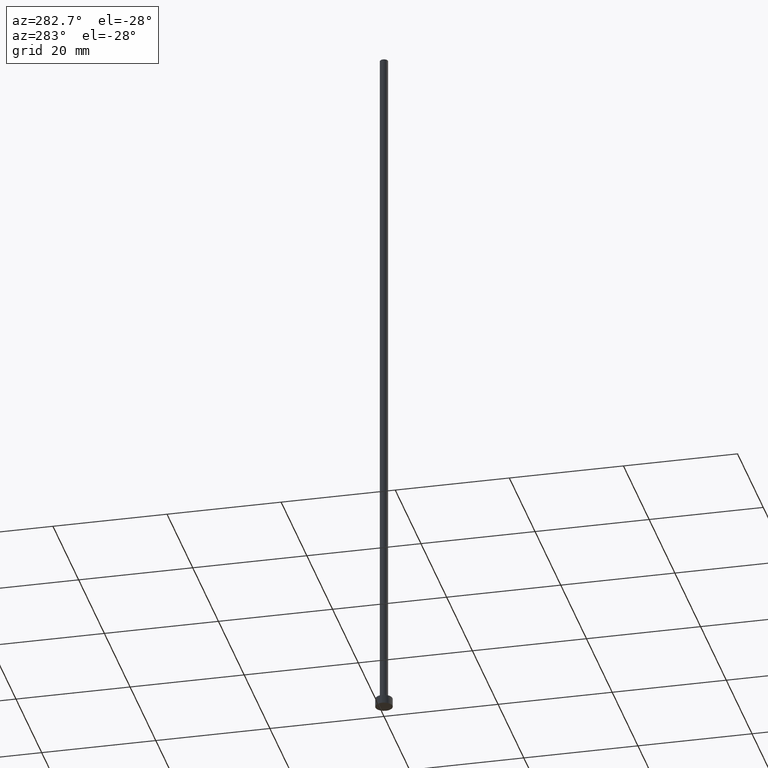
[diagram: clean part render]
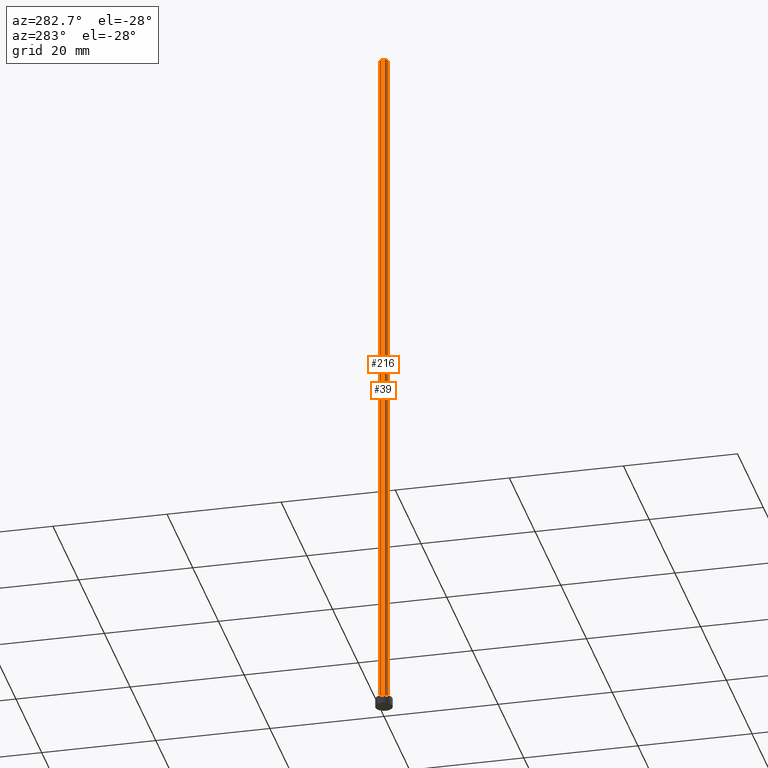
[diagram: same view with one multi-face feature highlighted, each face labeled with its STEP entity id]
A machine part, auxiliary view. The highlighted faces form ONE feature: a constant-radius fillet chain: 2 tangent blend faces with common blend radius 0.7 mm. The faces share edges in the B-rep.
Their STEP definitions:
[1] entity #39 (Cylinder):
#5 = EDGE_CURVE ( 'NONE', #131, #18, #194, .T. ) ;
#13 = DIRECTION ( 'NONE',  ( 0.000000000000000000, 0.000000000000000000, 1.000000000000000000 ) ) ;
#17 = CIRCLE ( 'NONE', #61, 0.6999999999999999556 ) ;
#18 = VERTEX_POINT ( 'NONE', #136 ) ;
#30 = DIRECTION ( 'NONE',  ( -1.000000000000000000, 0.000000000000000000, 0.000000000000000000 ) ) ;
#31 = DIRECTION ( 'NONE',  ( 1.000000000000000000, 0.000000000000000000, 0.000000000000000000 ) ) ;
#34 = CARTESIAN_POINT ( 'NONE',  ( 0.000000000000000000, 0.000000000000000000, 1.500000000000000000 ) ) ;
#35 = CIRCLE ( 'NONE', #237, 0.6999999999999999556 ) ;
#39 = ADVANCED_FACE ( 'NONE', ( #145 ), #157, .T. ) ;
#40 = ORIENTED_EDGE ( 'NONE', *, *, #5, .F. ) ;
#41 = AXIS2_PLACEMENT_3D ( 'NONE', #139, #210, #30 ) ;
#47 = EDGE_CURVE ( 'NONE', #86, #217, #172, .T. ) ;
#61 = AXIS2_PLACEMENT_3D ( 'NONE', #34, #13, #31 ) ;
#78 = CARTESIAN_POINT ( 'NONE',  ( -0.6999999999999999556, 0.000000000000000000, 125.0000000000000000 ) ) ;
#81 = DIRECTION ( 'NONE',  ( 0.000000000000000000, 0.000000000000000000, 1.000000000000000000 ) ) ;
#86 = VERTEX_POINT ( 'NONE', #190 ) ;
#96 = EDGE_CURVE ( 'NONE', #217, #18, #17, .T. ) ;
#100 = ORIENTED_EDGE ( 'NONE', *, *, #96, .T. ) ;
#104 = ORIENTED_EDGE ( 'NONE', *, *, #47, .T. ) ;
#112 = CARTESIAN_POINT ( 'NONE',  ( 0.6999999999999999556, 8.572527594031471957E-17, 1.500000000000000000 ) ) ;
#115 = CARTESIAN_POINT ( 'NONE',  ( 0.6999999999999999556, 8.572527594031471957E-17, 125.0000000000000000 ) ) ;
#116 = CARTESIAN_POINT ( 'NONE',  ( -0.6999999999999999556, 0.000000000000000000, 125.0000000000000000 ) ) ;
#124 = CARTESIAN_POINT ( 'NONE',  ( 0.000000000000000000, 0.000000000000000000, 125.0000000000000000 ) ) ;
#131 = VERTEX_POINT ( 'NONE', #78 ) ;
#136 = CARTESIAN_POINT ( 'NONE',  ( -0.6999999999999999556, 0.000000000000000000, 1.500000000000000000 ) ) ;
#139 = CARTESIAN_POINT ( 'NONE',  ( 0.000000000000000000, 0.000000000000000000, 125.0000000000000000 ) ) ;
#145 = FACE_OUTER_BOUND ( 'NONE', #163, .T. ) ;
#153 = DIRECTION ( 'NONE',  ( -0.000000000000000000, -0.000000000000000000, -1.000000000000000000 ) ) ;
#157 = CYLINDRICAL_SURFACE ( 'NONE', #41, 0.6999999999999999556 ) ;
#162 = EDGE_CURVE ( 'NONE', #86, #131, #35, .T. ) ;
#163 = EDGE_LOOP ( 'NONE', ( #185, #104, #100, #40 ) ) ;
#168 = VECTOR ( 'NONE', #153, 1000.000000000000000 ) ;
#172 = LINE ( 'NONE', #115, #232 ) ;
#185 = ORIENTED_EDGE ( 'NONE', *, *, #162, .F. ) ;
#190 = CARTESIAN_POINT ( 'NONE',  ( 0.6999999999999999556, 8.572527594031471957E-17, 125.0000000000000000 ) ) ;
#194 = LINE ( 'NONE', #116, #168 ) ;
#210 = DIRECTION ( 'NONE',  ( -0.000000000000000000, -0.000000000000000000, -1.000000000000000000 ) ) ;
#215 = DIRECTION ( 'NONE',  ( 1.000000000000000000, 0.000000000000000000, 0.000000000000000000 ) ) ;
#217 = VERTEX_POINT ( 'NONE', #112 ) ;
#219 = DIRECTION ( 'NONE',  ( -0.000000000000000000, -0.000000000000000000, -1.000000000000000000 ) ) ;
#232 = VECTOR ( 'NONE', #219, 1000.000000000000000 ) ;
#237 = AXIS2_PLACEMENT_3D ( 'NONE', #124, #81, #215 ) ;
[2] entity #216 (Cylinder):
#3 = EDGE_CURVE ( 'NONE', #18, #217, #63, .T. ) ;
#5 = EDGE_CURVE ( 'NONE', #131, #18, #194, .T. ) ;
#8 = DIRECTION ( 'NONE',  ( -0.000000000000000000, -0.000000000000000000, -1.000000000000000000 ) ) ;
#12 = ORIENTED_EDGE ( 'NONE', *, *, #47, .F. ) ;
#18 = VERTEX_POINT ( 'NONE', #136 ) ;
#26 = DIRECTION ( 'NONE',  ( 0.000000000000000000, 0.000000000000000000, 1.000000000000000000 ) ) ;
#47 = EDGE_CURVE ( 'NONE', #86, #217, #172, .T. ) ;
#49 = DIRECTION ( 'NONE',  ( 1.000000000000000000, 0.000000000000000000, 0.000000000000000000 ) ) ;
#63 = CIRCLE ( 'NONE', #181, 0.6999999999999999556 ) ;
#75 = EDGE_CURVE ( 'NONE', #131, #86, #83, .T. ) ;
#78 = CARTESIAN_POINT ( 'NONE',  ( -0.6999999999999999556, 0.000000000000000000, 125.0000000000000000 ) ) ;
#83 = CIRCLE ( 'NONE', #175, 0.6999999999999999556 ) ;
#86 = VERTEX_POINT ( 'NONE', #190 ) ;
#107 = ORIENTED_EDGE ( 'NONE', *, *, #75, .F. ) ;
#108 = ORIENTED_EDGE ( 'NONE', *, *, #5, .T. ) ;
#109 = DIRECTION ( 'NONE',  ( -1.000000000000000000, 0.000000000000000000, 0.000000000000000000 ) ) ;
#112 = CARTESIAN_POINT ( 'NONE',  ( 0.6999999999999999556, 8.572527594031471957E-17, 1.500000000000000000 ) ) ;
#115 = CARTESIAN_POINT ( 'NONE',  ( 0.6999999999999999556, 8.572527594031471957E-17, 125.0000000000000000 ) ) ;
#116 = CARTESIAN_POINT ( 'NONE',  ( -0.6999999999999999556, 0.000000000000000000, 125.0000000000000000 ) ) ;
#125 = CYLINDRICAL_SURFACE ( 'NONE', #129, 0.6999999999999999556 ) ;
#128 = ORIENTED_EDGE ( 'NONE', *, *, #3, .T. ) ;
#129 = AXIS2_PLACEMENT_3D ( 'NONE', #255, #8, #109 ) ;
#131 = VERTEX_POINT ( 'NONE', #78 ) ;
#133 = DIRECTION ( 'NONE',  ( 1.000000000000000000, 0.000000000000000000, 0.000000000000000000 ) ) ;
#136 = CARTESIAN_POINT ( 'NONE',  ( -0.6999999999999999556, 0.000000000000000000, 1.500000000000000000 ) ) ;
#141 = DIRECTION ( 'NONE',  ( 0.000000000000000000, 0.000000000000000000, 1.000000000000000000 ) ) ;
#153 = DIRECTION ( 'NONE',  ( -0.000000000000000000, -0.000000000000000000, -1.000000000000000000 ) ) ;
#168 = VECTOR ( 'NONE', #153, 1000.000000000000000 ) ;
#172 = LINE ( 'NONE', #115, #232 ) ;
#175 = AXIS2_PLACEMENT_3D ( 'NONE', #207, #26, #133 ) ;
#181 = AXIS2_PLACEMENT_3D ( 'NONE', #250, #141, #49 ) ;
#190 = CARTESIAN_POINT ( 'NONE',  ( 0.6999999999999999556, 8.572527594031471957E-17, 125.0000000000000000 ) ) ;
#194 = LINE ( 'NONE', #116, #168 ) ;
#195 = FACE_OUTER_BOUND ( 'NONE', #245, .T. ) ;
#207 = CARTESIAN_POINT ( 'NONE',  ( 0.000000000000000000, 0.000000000000000000, 125.0000000000000000 ) ) ;
#216 = ADVANCED_FACE ( 'NONE', ( #195 ), #125, .T. ) ;
#217 = VERTEX_POINT ( 'NONE', #112 ) ;
#219 = DIRECTION ( 'NONE',  ( -0.000000000000000000, -0.000000000000000000, -1.000000000000000000 ) ) ;
#232 = VECTOR ( 'NONE', #219, 1000.000000000000000 ) ;
#245 = EDGE_LOOP ( 'NONE', ( #12, #107, #108, #128 ) ) ;
#250 = CARTESIAN_POINT ( 'NONE',  ( 0.000000000000000000, 0.000000000000000000, 1.500000000000000000 ) ) ;
#255 = CARTESIAN_POINT ( 'NONE',  ( 0.000000000000000000, 0.000000000000000000, 125.0000000000000000 ) ) ;